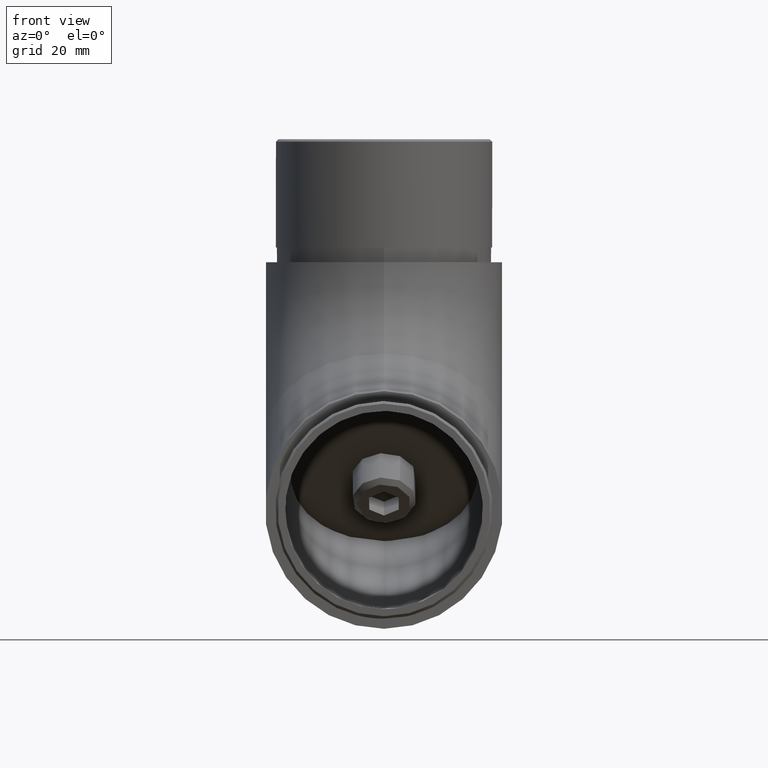
[diagram: clean part render]
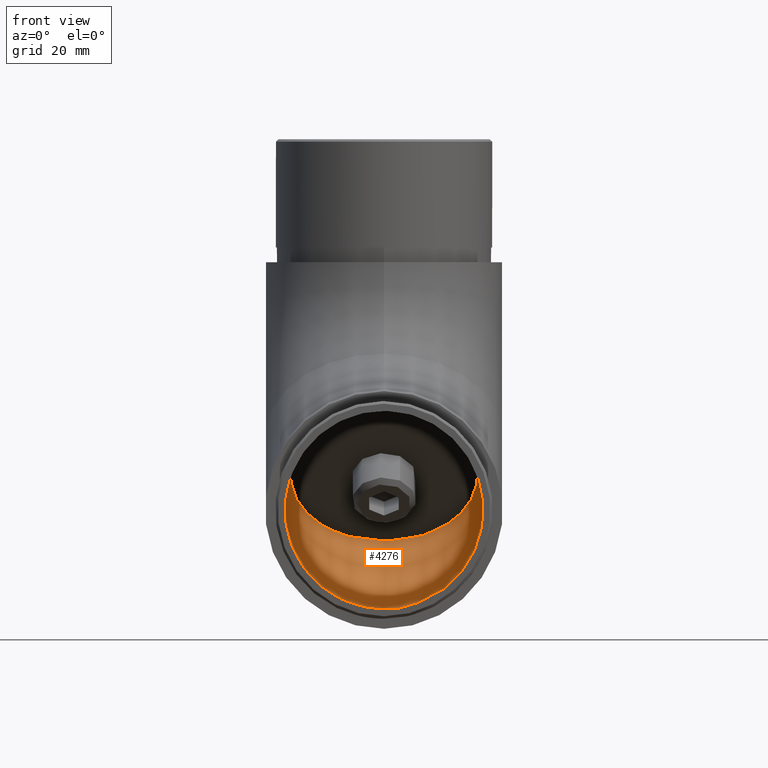
[diagram: same view with one face highlighted and labeled with its STEP entity id]
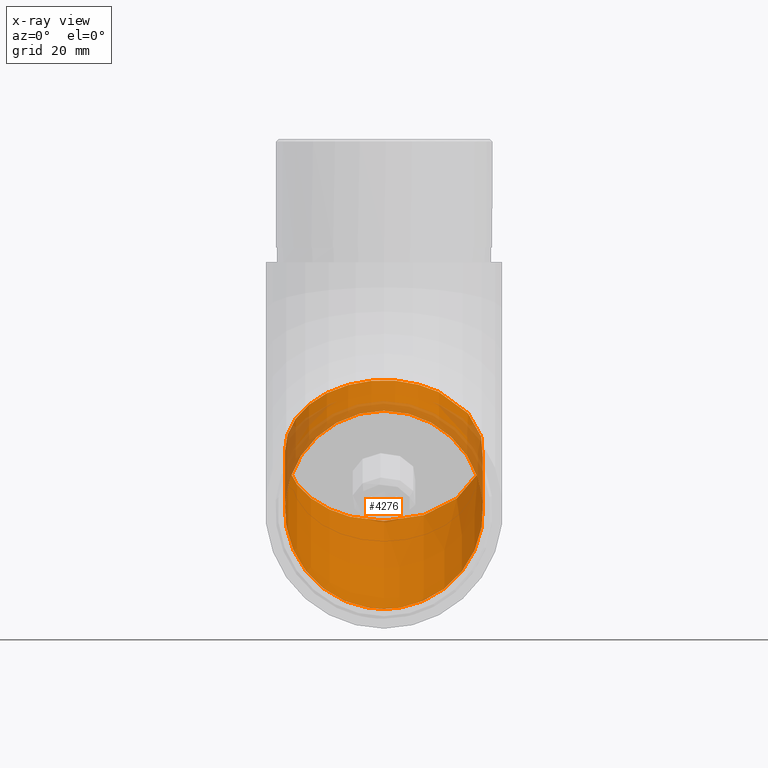
[diagram: x-ray of the same camera — body ghosted, the highlighted face saturated]
A machine part, front view. The second image highlights one B-rep face of the part: STEP entity #4276.
The next image is the same camera in x-ray: the body ghosted, the highlighted face saturated — about 17% of this face is hidden behind the body in this view.
In plain terms, the highlighted toroidal blend (fillet) surface has major radius 50.35 mm and minor (blend) radius 20.15 mm.
Its self-contained STEP definition (entity closure, byte-faithful):
#57 = CARTESIAN_POINT ( 'NONE',  ( -17.12647450377649600, 40.19206232622953900, 4.501083424277610800 ) ) ;
#266 = CARTESIAN_POINT ( 'NONE',  ( 2.195275639301681000, 0.5543505916238687900, -20.03529424611946300 ) ) ;
#302 = CARTESIAN_POINT ( 'NONE',  ( 1.626303258728256700E-015, 46.94229720190963900, -2.249151451402556600 ) ) ;
#362 = CARTESIAN_POINT ( 'NONE',  ( -19.88886450898492300, 30.32076397864857100, 14.37238177185869700 ) ) ;
#371 = CARTESIAN_POINT ( 'NONE',  ( 1.115233151837552900, 0.8657629282407685000, -20.11570157501166300 ) ) ;
#416 = CARTESIAN_POINT ( 'NONE',  ( -20.11737742604873300, 31.72262368875526000, 12.97052206175198600 ) ) ;
#463 = CARTESIAN_POINT ( 'NONE',  ( -2.653758223437387100, 18.45533405234722900, 26.23781169816016100 ) ) ;
#518 = CARTESIAN_POINT ( 'NONE',  ( 19.62889730255236400, 29.39797130222601100, 15.29517444828128500 ) ) ;
#581 = CARTESIAN_POINT ( 'NONE',  ( 15.18411605545579900, 42.06378727514188400, 2.629358475365261200 ) ) ;
#618 = B_SPLINE_CURVE_WITH_KNOTS ( 'NONE', 3,
 ( #302, #11157, #2442, #7383, #2491, #13643, #3758, #1186, #3807, #8680, #9895, #6201, #1239, #14939, #7481, #8996, #57, #1288, #1560, #12710, #10008, #5265, #2556, #11251, #6513, #10268, #2812, #11522, #6781, #416, #13036, #362, #4351, #5539, #5595, #1718, #14284, #6623, #15301, #2923, #10429, #2976, #7890, #11624, #1609, #9109, #10331, #11740, #11789, #14064, #7836, #463, #11687, #1828, #9221, #4228, #9045, #2861, #15412, #6676, #6725, #1779, #4291, #14173, #4127, #9277, #14234, #10547, #7952, #11568, #3089, #6844, #10380, #1657, #7791, #4175, #518, #12822, #5363, #12873, #10485, #5423, #3029, #14109, #15361, #15461, #9172, #12919, #5482, #12972, #8013, #581, #8185, #798, #4401, #3199, #13253, #6942, #10600, #2050, #15743, #15582, #14547, #3361, #8287, #10652 ),
 .UNSPECIFIED., .T., .F.,
 ( 4, 2, 2, 2, 2, 2, 2, 2, 2, 2, 1, 2, 2, 2, 2, 2, 2, 2, 2, 2, 2, 2, 2, 2, 2, 2, 2, 2, 2, 2, 1, 2, 2, 2, 2, 2, 2, 2, 2, 2, 2, 2, 2, 2, 2, 2, 2, 2, 2, 2, 2, 2, 2, 4 ),
 ( 0.0000000000000000000, 0.003944160719861086000, 0.005916241079791629100, 0.007888321439722172100, 0.01183248215958325500, 0.01380456251951379400, 0.01577664287944433400, 0.01972080359930539600, 0.02070684377927066100, 0.02169288395923593000, 0.02366496431916647800, 0.02563704467909702600, 0.02662308485906229500, 0.02760912503902756800, 0.03155328575888868100, 0.03352536611881924000, 0.03549744647874979900, 0.03944160719861091600, 0.04141368755854146800, 0.04338576791847201900, 0.04732992863833311600, 0.04930200899826367400, 0.05127408935819421900, 0.05324616971812477100, 0.05521825007805531600, 0.05916241079791641900, 0.06113449115784697100, 0.06310657151777751600, 0.06705073223763861900, 0.06902281259756917800, 0.07099489295749973600, 0.07296697331743028100, 0.07395301349739555300, 0.07493905367736084000, 0.07888321439722191500, 0.08085529475715246000, 0.08282737511708300500, 0.08677153583694409400, 0.08874361619687462500, 0.09071569655680518400, 0.09465985727666624500, 0.09663193763659677600, 0.09860401799652729300, 0.1005760983564578100, 0.1025481787163883300, 0.1064923394362493600, 0.1084644197961798800, 0.1104365001561103800, 0.1143806608759714200, 0.1163527412359019500, 0.1183248215958324600, 0.1202969019557629700, 0.1222689823156934800, 0.1262131430355545300 ),
 .UNSPECIFIED. ) ;
#798 = CARTESIAN_POINT ( 'NONE',  ( 13.34690022980941200, 43.40283473918562200, 1.290311011321489500 ) ) ;
#908 = TOROIDAL_SURFACE ( 'NONE', #2987, 50.34999999999998700, 20.14999999999999900 ) ;
#1186 = CARTESIAN_POINT ( 'NONE',  ( -8.949533161219013900, 45.49165092986055500, -0.7985051793534395600 ) ) ;
#1239 = CARTESIAN_POINT ( 'NONE',  ( -13.80178526099742900, 43.07883788612054600, 1.614307864386582200 ) ) ;
#1288 = CARTESIAN_POINT ( 'NONE',  ( -17.46681702815541800, 39.78848734334583500, 4.904658407161325500 ) ) ;
#1560 = CARTESIAN_POINT ( 'NONE',  ( -17.62932924995926600, 39.58446708600596500, 5.108678664501198300 ) ) ;
#1609 = CARTESIAN_POINT ( 'NONE',  ( -10.66921206011022800, 20.50775669933969400, 24.18538905116767900 ) ) ;
#1657 = CARTESIAN_POINT ( 'NONE',  ( 18.85842035135795700, 27.60262108707095100, 17.09052466343634400 ) ) ;
#1718 = CARTESIAN_POINT ( 'NONE',  ( -18.08209682646716500, 26.33296228380930500, 18.36018346669801100 ) ) ;
#1779 = CARTESIAN_POINT ( 'NONE',  ( 9.781917172109174900, 20.14208591853244500, 24.55105983197492100 ) ) ;
#1828 = CARTESIAN_POINT ( 'NONE',  ( -0.6666010450972145200, 18.33823928816382000, 26.35490646234357100 ) ) ;
#1957 = CARTESIAN_POINT ( 'NONE',  ( -2.927314409203900500, 0.1569562435987145200, -19.93761998934266800 ) ) ;
#2050 = CARTESIAN_POINT ( 'NONE',  ( 7.137057088472760200, 46.02520018710055200, -1.332054436593453500 ) ) ;
#2077 = ORIENTED_EDGE ( 'NONE', *, *, #6922, .T. ) ;
#2442 = CARTESIAN_POINT ( 'NONE',  ( -2.644949835334809300, 46.84944717696395600, -2.156301426456876900 ) ) ;
#2491 = CARTESIAN_POINT ( 'NONE',  ( -5.219226498411536900, 46.46323274224158000, -1.770086991734486600 ) ) ;
#2556 = CARTESIAN_POINT ( 'NONE',  ( -19.38211049515644300, 36.57589622449488300, 8.117249526012312100 ) ) ;
#2812 = CARTESIAN_POINT ( 'NONE',  ( -20.02424884082724400, 34.51216862217551600, 10.18097712833169600 ) ) ;
#2861 = CARTESIAN_POINT ( 'NONE',  ( 5.218311902298103700, 18.82037617898513600, 25.87276957152225500 ) ) ;
#2923 = CARTESIAN_POINT ( 'NONE',  ( -15.19909587503373600, 23.21996803969731700, 21.47317771081003100 ) ) ;
#2976 = CARTESIAN_POINT ( 'NONE',  ( -13.30148241940277900, 21.90046098573601100, 22.79268476477134800 ) ) ;
#2986 = CARTESIAN_POINT ( 'NONE',  ( -1.111831254277740200, 0.8664917806191309000, -20.11589250901071000 ) ) ;
#2987 = AXIS2_PLACEMENT_3D ( 'NONE', #4456, #14285, #12973 ) ;
#3029 = CARTESIAN_POINT ( 'NONE',  ( 19.89790875822845700, 34.96279664247615700, 9.730349108031058200 ) ) ;
#3089 = CARTESIAN_POINT ( 'NONE',  ( 16.38462722506430300, 24.32090059229790300, 20.37224515820942400 ) ) ;
#3199 = CARTESIAN_POINT ( 'NONE',  ( 10.68429795806334000, 44.77984683149420400, -0.08670108098709852800 ) ) ;
#3209 = CARTESIAN_POINT ( 'NONE',  ( -3.159691764977039100, -6.938893903907228400E-015, -19.90072480967303600 ) ) ;
#3361 = CARTESIAN_POINT ( 'NONE',  ( 2.653452492555075500, 46.84943583166565200, -2.156290081158566800 ) ) ;
#3758 = CARTESIAN_POINT ( 'NONE',  ( -7.117232069707549500, 46.03060800482793300, -1.337462254320817700 ) ) ;
#3807 = CARTESIAN_POINT ( 'NONE',  ( -10.10805341551370500, 45.05194272576792300, -0.3587969752607799200 ) ) ;
#3841 = CIRCLE ( 'NONE', #7858, 20.14999999999999900 ) ;
#3896 = VERTEX_POINT ( 'NONE', #7457 ) ;
#3980 = CARTESIAN_POINT ( 'NONE',  ( 2.695044966173142600, 0.3138395989453104400, -19.97449803541454800 ) ) ;
#4073 = CARTESIAN_POINT ( 'NONE',  ( -3.159691764977039100, -6.938893903907228400E-015, -19.90072480967303600 ) ) ;
#4127 = CARTESIAN_POINT ( 'NONE',  ( 10.91964052201537600, 20.62755479557921800, 24.06559095492815800 ) ) ;
#4175 = CARTESIAN_POINT ( 'NONE',  ( 19.46870333324440200, 28.94549748538034400, 15.74764826512693400 ) ) ;
#4228 = CARTESIAN_POINT ( 'NONE',  ( 2.618830932949460300, 18.42864196029281500, 26.26450379021457900 ) ) ;
#4276 = ADVANCED_FACE ( 'NONE', ( #9072, #6556 ), #908, .F. ) ;
#4291 = CARTESIAN_POINT ( 'NONE',  ( 10.06942509102619200, 20.25798359156551600, 24.43516215894185700 ) ) ;
#4351 = CARTESIAN_POINT ( 'NONE',  ( -19.50280682538455700, 28.94807296631960000, 15.74507278418768900 ) ) ;
#4401 = CARTESIAN_POINT ( 'NONE',  ( 12.33334223143323200, 43.99536126843887700, 0.6977844820682667100 ) ) ;
#4410 = CARTESIAN_POINT ( 'NONE',  ( -2.684902217150123800, 0.2960628587329742200, -19.97142527712294300 ) ) ;
#4456 = CARTESIAN_POINT ( 'NONE',  ( 0.0000000000000000000, -6.938893903907228400E-015, 50.34999999999999400 ) ) ;
#4465 = CARTESIAN_POINT ( 'NONE',  ( -1.383375080410177200, 0.8046652885434031300, -20.09968761591267800 ) ) ;
#5265 = CARTESIAN_POINT ( 'NONE',  ( -19.09586350607051500, 37.24663702720951600, 7.446508723297680100 ) ) ;
#5363 = CARTESIAN_POINT ( 'NONE',  ( 20.14739570029868400, 31.69278112660462600, 13.00036462390265200 ) ) ;
#5370 = CARTESIAN_POINT ( 'NONE',  ( 1.390993928160597000, 0.8028186232949416900, -20.09920524312275000 ) ) ;
#5423 = CARTESIAN_POINT ( 'NONE',  ( 19.99296052984229300, 34.50267859834524800, 10.19046715216196300 ) ) ;
#5471 = EDGE_CURVE ( 'NONE', #14889, #3896, #3841, .T. ) ;
#5482 = CARTESIAN_POINT ( 'NONE',  ( 17.51127522138842700, 39.79085881520475000, 4.902286935302445400 ) ) ;
#5539 = CARTESIAN_POINT ( 'NONE',  ( -19.12261015942416300, 28.05810368695539500, 16.63504206355192100 ) ) ;
#5595 = CARTESIAN_POINT ( 'NONE',  ( -18.36694178885854700, 26.76111955814516800, 17.93202619236214800 ) ) ;
#5666 = CARTESIAN_POINT ( 'NONE',  ( 2.455441628932474400E-015, 46.94229720190963900, -2.249151451402556100 ) ) ;
#6201 = CARTESIAN_POINT ( 'NONE',  ( -13.31321647508026700, 43.39361275090773500, 1.299532999599385200 ) ) ;
#6460 = VERTEX_POINT ( 'NONE', #5666 ) ;
#6513 = CARTESIAN_POINT ( 'NONE',  ( -19.63054528521784500, 35.89413239745081100, 8.799013353056391700 ) ) ;
#6556 = FACE_OUTER_BOUND ( 'NONE', #9128, .T. ) ;
#6623 = CARTESIAN_POINT ( 'NONE',  ( -17.12156535185266600, 25.10484593969811200, 19.58829981080922200 ) ) ;
#6676 = CARTESIAN_POINT ( 'NONE',  ( 7.721534520597944400, 19.41021783652468700, 25.28292791398268900 ) ) ;
#6725 = CARTESIAN_POINT ( 'NONE',  ( 8.909818902568309400, 19.81029108402660200, 24.88285466648076000 ) ) ;
#6781 = CARTESIAN_POINT ( 'NONE',  ( -20.14967892597400100, 32.18939414822456500, 12.50375160228267600 ) ) ;
#6844 = CARTESIAN_POINT ( 'NONE',  ( 17.48124650972854300, 25.48662486629779500, 19.20652088420951400 ) ) ;
#6922 = EDGE_CURVE ( 'NONE', #6460, #6460, #618, .T. ) ;
#6942 = CARTESIAN_POINT ( 'NONE',  ( 8.945495519076894600, 45.46736836972903000, -0.7742226192219258100 ) ) ;
#7383 = CARTESIAN_POINT ( 'NONE',  ( -4.579709459261425600, 46.57660673263087900, -1.883460982123768700 ) ) ;
#7457 = CARTESIAN_POINT ( 'NONE',  ( 3.159691764977039500, -6.938893903907228400E-015, -19.90072480967303600 ) ) ;
#7481 = CARTESIAN_POINT ( 'NONE',  ( -16.02880271460269400, 41.36900602683610400, 3.324139723671014400 ) ) ;
#7791 = CARTESIAN_POINT ( 'NONE',  ( 19.08378431848878200, 28.04796099317472300, 16.64518475733255800 ) ) ;
#7836 = CARTESIAN_POINT ( 'NONE',  ( -3.309434230379867600, 18.52546129573162000, 26.16768445477577700 ) ) ;
#7858 = AXIS2_PLACEMENT_3D ( 'NONE', #12957, #11672, #15344 ) ;
#7890 = CARTESIAN_POINT ( 'NONE',  ( -12.28561417781103400, 21.30618939446956300, 23.38695635603778900 ) ) ;
#7952 = CARTESIAN_POINT ( 'NONE',  ( 15.14761816557855000, 23.21354262152777200, 21.47960312897957600 ) ) ;
#8013 = CARTESIAN_POINT ( 'NONE',  ( 16.02671810272028100, 41.33291853651188300, 3.360227213995271800 ) ) ;
#8185 = CARTESIAN_POINT ( 'NONE',  ( 14.74069705329188900, 42.41149693126865100, 2.281648819238483400 ) ) ;
#8287 = CARTESIAN_POINT ( 'NONE',  ( 1.333658969973105600, 46.94229720190963900, -2.249151451402556100 ) ) ;
#8680 = CARTESIAN_POINT ( 'NONE',  ( -11.75213895349856100, 44.27282896633961000, 0.4203167841675046800 ) ) ;
#8996 = CARTESIAN_POINT ( 'NONE',  ( -16.94833109413414700, 40.39189429243360500, 4.301251458073550400 ) ) ;
#9045 = CARTESIAN_POINT ( 'NONE',  ( 4.569524254996091300, 18.70452669142283900, 25.98861905908455900 ) ) ;
#9072 = FACE_OUTER_BOUND ( 'NONE', #11701, .T. ) ;
#9109 = CARTESIAN_POINT ( 'NONE',  ( -10.10581327736859000, 20.26631014209683100, 24.42683560841053800 ) ) ;
#9128 = EDGE_LOOP ( 'NONE', ( #12810, #14477 ) ) ;
#9172 = CARTESIAN_POINT ( 'NONE',  ( 18.88335383379546800, 37.66968410725204600, 7.023461643255161300 ) ) ;
#9185 = CARTESIAN_POINT ( 'NONE',  ( -2.179622215982052900, 0.5382080640126919400, -20.03143108937267100 ) ) ;
#9221 = CARTESIAN_POINT ( 'NONE',  ( 1.309741893292930800, 18.33769211355930300, 26.35545363694809100 ) ) ;
#9277 = CARTESIAN_POINT ( 'NONE',  ( 12.29778205286952900, 21.28339988587473600, 23.40974586463262200 ) ) ;
#9354 = CARTESIAN_POINT ( 'NONE',  ( -0.2746224006078908400, 0.9707659617500729000, -20.14339227277683300 ) ) ;
#9670 = EDGE_CURVE ( 'NONE', #3896, #14889, #10795, .T. ) ;
#9895 = CARTESIAN_POINT ( 'NONE',  ( -12.28642388296911600, 43.99188284185648000, 0.7012629086506194700 ) ) ;
#10008 = CARTESIAN_POINT ( 'NONE',  ( -18.65423729053386400, 38.12347750034621900, 6.569668250160969300 ) ) ;
#10268 = CARTESIAN_POINT ( 'NONE',  ( -19.70321084023797900, 35.66358276305001600, 9.029562987457190100 ) ) ;
#10331 = CARTESIAN_POINT ( 'NONE',  ( -8.941270746754106800, 19.82131482212540200, 24.87183092838196800 ) ) ;
#10380 = CARTESIAN_POINT ( 'NONE',  ( 18.09987136609084900, 26.30698713790970100, 18.38615861259762200 ) ) ;
#10429 = CARTESIAN_POINT ( 'NONE',  ( -13.79177870523023400, 22.21689899926815300, 22.47624675123919900 ) ) ;
#10485 = CARTESIAN_POINT ( 'NONE',  ( 20.11963264382593400, 33.57442554025745100, 11.11872021024978700 ) ) ;
#10547 = CARTESIAN_POINT ( 'NONE',  ( 14.70486509044389600, 22.86678382005004600, 21.82636193045728800 ) ) ;
#10600 = CARTESIAN_POINT ( 'NONE',  ( 8.350617709532537300, 45.66738248184075400, -0.9742367313336444100 ) ) ;
#10652 = CARTESIAN_POINT ( 'NONE',  ( 1.626303258728256700E-015, 46.94229720190963900, -2.249151451402556600 ) ) ;
#10795 = B_SPLINE_CURVE_WITH_KNOTS ( 'NONE', 3,
 ( #12770, #3980, #266, #5370, #371, #12881, #12671, #9354, #11699, #2986, #4465, #13048, #9185, #4410, #1957, #3209 ),
 .UNSPECIFIED., .F., .F.,
 ( 4, 2, 2, 2, 2, 2, 2, 4 ),
 ( 3.554810701139907500E-007, 0.001673900693106184900, 0.002510673299124219900, 0.003347445905142255100, 0.004184218511160290300, 0.005020991117178324200, 0.005857763723196359800, 0.006694536329214393700 ),
 .UNSPECIFIED. ) ;
#11157 = CARTESIAN_POINT ( 'NONE',  ( -1.333658969973112100, 46.94229720190963900, -2.249151451402556600 ) ) ;
#11251 = CARTESIAN_POINT ( 'NONE',  ( -19.47001748748413500, 36.35012702684380800, 8.343018723663396600 ) ) ;
#11522 = CARTESIAN_POINT ( 'NONE',  ( -20.15063502050393800, 33.58600123850569500, 11.10714451200151700 ) ) ;
#11568 = CARTESIAN_POINT ( 'NONE',  ( 15.98880539678368400, 23.94154239127340100, 20.75160335923393600 ) ) ;
#11624 = CARTESIAN_POINT ( 'NONE',  ( -11.75911320557539600, 21.02769562746707500, 23.66545012304029100 ) ) ;
#11672 = DIRECTION ( 'NONE',  ( 0.0000000000000000000, 1.000000000000000000, 0.0000000000000000000 ) ) ;
#11687 = CARTESIAN_POINT ( 'NONE',  ( -1.327515149288675200, 18.36141086307888100, 26.33173488742851000 ) ) ;
#11699 = CARTESIAN_POINT ( 'NONE',  ( -0.5585444341889364000, 0.9496559332670719800, -20.13777551682278100 ) ) ;
#11701 = EDGE_LOOP ( 'NONE', ( #2077 ) ) ;
#11740 = CARTESIAN_POINT ( 'NONE',  ( -8.337169416022430100, 19.61708108061760900, 25.07606466988977400 ) ) ;
#11789 = CARTESIAN_POINT ( 'NONE',  ( -6.504601496350969300, 19.07476700158773400, 25.61837874891964300 ) ) ;
#12671 = CARTESIAN_POINT ( 'NONE',  ( 0.2856892710782065200, 0.9702141521486578000, -20.14324598661537300 ) ) ;
#12710 = CARTESIAN_POINT ( 'NONE',  ( -18.09430891812558400, 38.96583049094914500, 5.727315259558037200 ) ) ;
#12770 = CARTESIAN_POINT ( 'NONE',  ( 3.159691764977039500, -6.938893903907228400E-015, -19.90072480967303600 ) ) ;
#12810 = ORIENTED_EDGE ( 'NONE', *, *, #5471, .F. ) ;
#12822 = CARTESIAN_POINT ( 'NONE',  ( 20.01501736082088800, 30.76624132642190500, 13.92690442408534500 ) ) ;
#12873 = CARTESIAN_POINT ( 'NONE',  ( 20.15124563148128800, 33.10495337848764300, 11.58819237201959100 ) ) ;
#12881 = CARTESIAN_POINT ( 'NONE',  ( 0.5636474594918415800, 0.9491030886404543400, -20.13762921047344900 ) ) ;
#12919 = CARTESIAN_POINT ( 'NONE',  ( 18.12800706768317100, 38.96957056575266200, 5.723575184754516000 ) ) ;
#12957 = CARTESIAN_POINT ( 'NONE',  ( 0.0000000000000000000, -6.938893903907228400E-015, 6.938893903907228400E-015 ) ) ;
#12972 = CARTESIAN_POINT ( 'NONE',  ( 16.41891229005511800, 40.95583222777193600, 3.737313522735199900 ) ) ;
#12973 = DIRECTION ( 'NONE',  ( 0.0000000000000000000, 0.0000000000000000000, 1.000000000000000000 ) ) ;
#13036 = CARTESIAN_POINT ( 'NONE',  ( -19.98686646493217000, 30.78653825562954400, 13.90660749487772200 ) ) ;
#13048 = CARTESIAN_POINT ( 'NONE',  ( -1.916422948362482200, 0.6409868466903411200, -20.05757171849837700 ) ) ;
#13253 = CARTESIAN_POINT ( 'NONE',  ( 10.11099431092640800, 45.02432845966664800, -0.3311827091595371800 ) ) ;
#13643 = CARTESIAN_POINT ( 'NONE',  ( -6.487206800913034100, 46.19060052690289800, -1.497454776395826400 ) ) ;
#14064 = CARTESIAN_POINT ( 'NONE',  ( -5.247535446604599600, 18.80219487834915200, 25.89095087215827100 ) ) ;
#14109 = CARTESIAN_POINT ( 'NONE',  ( 19.64491405889934600, 35.87508404493985400, 8.818061705567357600 ) ) ;
#14173 = CARTESIAN_POINT ( 'NONE',  ( 10.63795513451459000, 20.50054840005810100, 24.19259735044925800 ) ) ;
#14234 = CARTESIAN_POINT ( 'NONE',  ( 13.31195752493337100, 21.87680681130029800, 22.81633893920708900 ) ) ;
#14284 = CARTESIAN_POINT ( 'NONE',  ( -17.45946623972533400, 25.50529055825348500, 19.18785519225381700 ) ) ;
#14285 = DIRECTION ( 'NONE',  ( -1.000000000000000000, -0.0000000000000000000, -0.0000000000000000000 ) ) ;
#14477 = ORIENTED_EDGE ( 'NONE', *, *, #9670, .F. ) ;
#14547 = CARTESIAN_POINT ( 'NONE',  ( 4.612403371605485500, 46.57138541755608000, -1.878239667048980000 ) ) ;
#14889 = VERTEX_POINT ( 'NONE', #4073 ) ;
#14939 = CARTESIAN_POINT ( 'NONE',  ( -15.19532172388289100, 42.08905065336963200, 2.604095097137477700 ) ) ;
#15301 = CARTESIAN_POINT ( 'NONE',  ( -16.02995171963922900, 23.94275607415620800, 20.75038967635112300 ) ) ;
#15344 = DIRECTION ( 'NONE',  ( 0.0000000000000000000, 0.0000000000000000000, 1.000000000000000000 ) ) ;
#15361 = CARTESIAN_POINT ( 'NONE',  ( 19.48697287708985500, 36.32725362393414800, 8.365892126573063700 ) ) ;
#15412 = CARTESIAN_POINT ( 'NONE',  ( 6.482781056976065800, 19.09394694993311600, 25.59919880057427500 ) ) ;
#15461 = CARTESIAN_POINT ( 'NONE',  ( 19.10692809018665300, 37.22348342324099900, 7.469662327266188000 ) ) ;
#15582 = CARTESIAN_POINT ( 'NONE',  ( 5.256959905513743300, 46.45596824161844300, -1.762822491111363500 ) ) ;
#15743 = CARTESIAN_POINT ( 'NONE',  ( 6.518373783814737100, 46.18300290581882500, -1.489857155311721900 ) ) ;